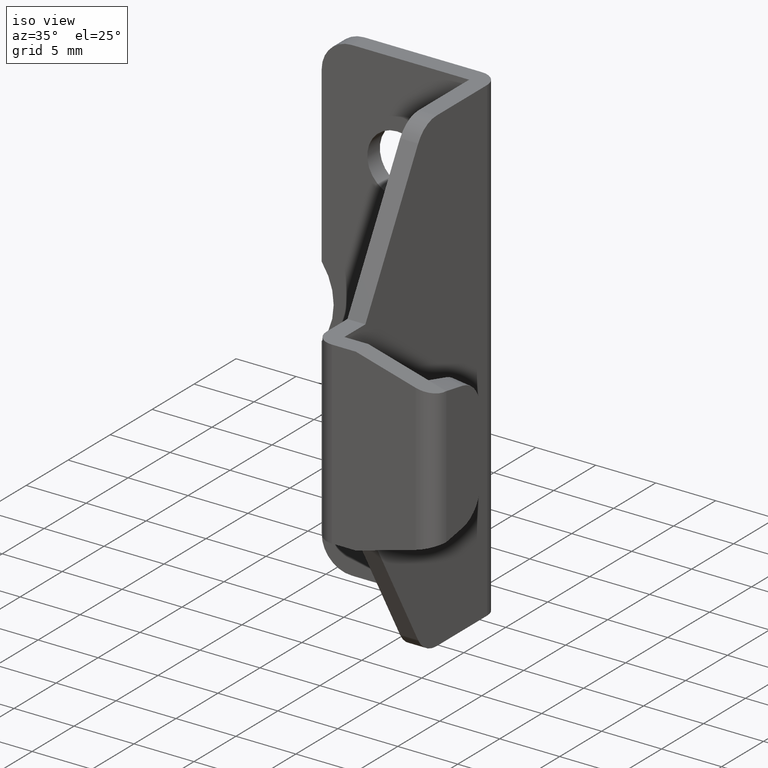
[diagram: clean part render]
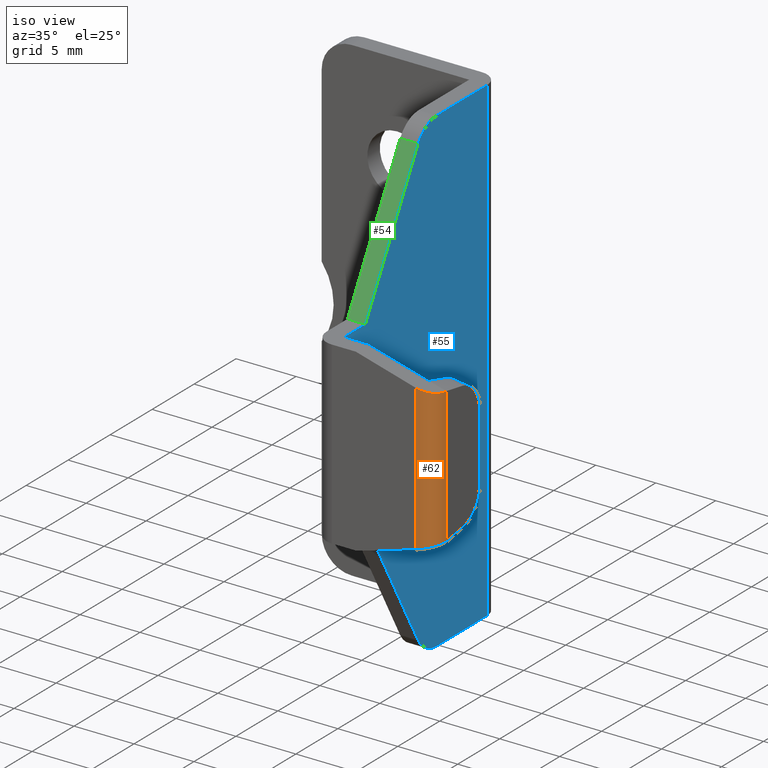
[diagram: same view with three faces highlighted in distinct colors, each labeled with its STEP entity id]
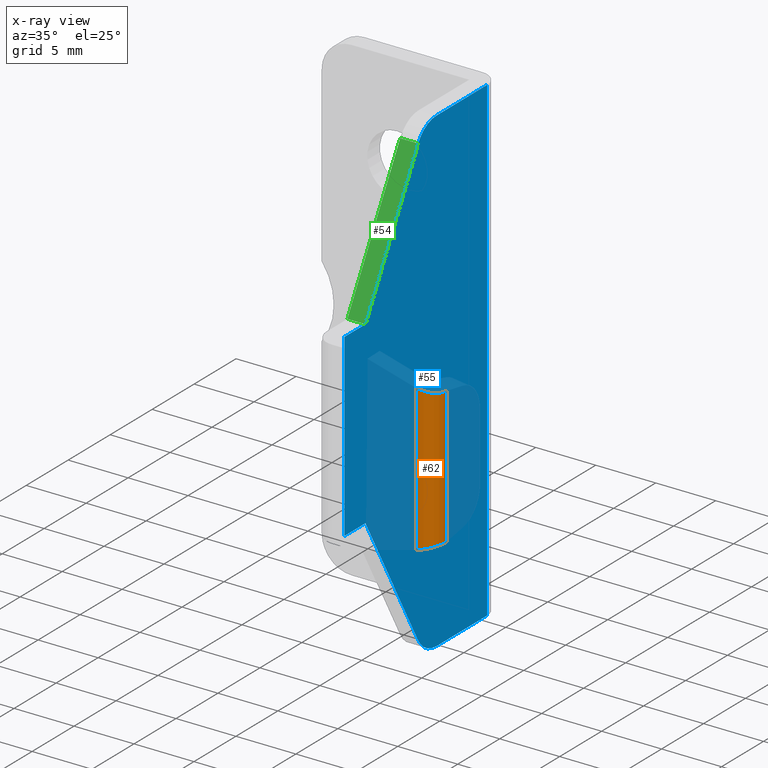
[diagram: x-ray of the same camera — body ghosted, the three highlighted faces saturated]
A machine part, iso view with three faces highlighted in distinct colors.
The next image is the same camera in x-ray (body ghosted, the three faces saturated) — at least one of them is partly hidden behind the body in this view.
Their STEP definitions:

[orange] entity #62 — the highlighted cylindrical surface (edge-blend (fillet) strip) has radius 1.5 mm, axis along (-0, -0, 1).
#62=ADVANCED_FACE('',(#300),#299,.T.);
#299=CYLINDRICAL_SURFACE('',#562,1.50000000000E+00);
#300=FACE_OUTER_BOUND('',#563,.T.);
#559=CARTESIAN_POINT('',(2.07999880000E+01,-1.75000000000E+01,5.69444783696E+00));
#560=DIRECTION('',(-0.00000000000E+00,-0.00000000000E+00,1.00000000000E+00));
#561=DIRECTION('',(1.00000000000E+00,-0.00000000000E+00,-0.00000000000E+00));
#562=AXIS2_PLACEMENT_3D('',#559,#560,#561);
#563=EDGE_LOOP('',(#744,#745,#746,#747));
#744=ORIENTED_EDGE('',*,*,#893,.F.);
#745=ORIENTED_EDGE('',*,*,#889,.T.);
#746=ORIENTED_EDGE('',*,*,#894,.F.);
#747=ORIENTED_EDGE('',*,*,#895,.F.);
#889=EDGE_CURVE('',#1364,#1409,#1416,.T.);
#893=EDGE_CURVE('',#1364,#952,#1442,.T.);
#894=EDGE_CURVE('',#1448,#1409,#1449,.T.);
#895=EDGE_CURVE('',#952,#1448,#1455,.T.);
#952=VERTEX_POINT('',#1598);
#1364=VERTEX_POINT('',#1849);
#1409=VERTEX_POINT('',#1873);
#1416=(BOUNDED_CURVE() B_SPLINE_CURVE(2,(#1877,#1878,#1879),.UNSPECIFIED.,.F.,.F.) B_SPLINE_CURVE_WITH_KNOTS((3,3),(-3.14159265359E+00,-1.57079632679E+00),.UNSPECIFIED.) CURVE() GEOMETRIC_REPRESENTATION_ITEM() RATIONAL_B_SPLINE_CURVE((1.00000000000E+00,7.07106781187E-01,1.00000000000E+00)) REPRESENTATION_ITEM('') );
#1442=LINE('',#1921,#1922);
#1448=VERTEX_POINT('',#1924);
#1449=LINE('',#1925,#1926);
#1455=(BOUNDED_CURVE() B_SPLINE_CURVE(2,(#1928,#1929,#1930),.UNSPECIFIED.,.F.,.F.) B_SPLINE_CURVE_WITH_KNOTS((3,3),(-3.14159265359E+00,-1.57079632679E+00),.UNSPECIFIED.) CURVE() GEOMETRIC_REPRESENTATION_ITEM() RATIONAL_B_SPLINE_CURVE((1.00000000000E+00,7.07106781187E-01,1.00000000000E+00)) REPRESENTATION_ITEM('') );
#1598=CARTESIAN_POINT('',(2.22999880000E+01,-1.75000000000E+01,-5.69443980321E+00));
#1849=CARTESIAN_POINT('',(2.22999880000E+01,-1.75000000000E+01,5.69443980321E+00));
#1873=CARTESIAN_POINT('',(2.07999880000E+01,-1.90000000000E+01,6.11110754093E+00));
#1877=CARTESIAN_POINT('',(2.22999880000E+01,-1.75000000000E+01,5.69443980321E+00));
#1878=CARTESIAN_POINT('',(2.22999880000E+01,-1.90000000000E+01,5.69443980321E+00));
#1879=CARTESIAN_POINT('',(2.07999880000E+01,-1.90000000000E+01,6.11110754093E+00));
#1921=CARTESIAN_POINT('',(2.22999880000E+01,-1.75000000000E+01,5.69443980321E+00));
#1922=VECTOR('',#1923,1.13888796064E+01);
#1923=DIRECTION('',(0.00000000000E+00,0.00000000000E+00,-1.00000000000E+00));
#1924=CARTESIAN_POINT('',(2.07999880000E+01,-1.90000000000E+01,-6.11110754093E+00));
#1925=CARTESIAN_POINT('',(2.07999880000E+01,-1.90000000000E+01,-6.11110754093E+00));
#1926=VECTOR('',#1927,1.22222150819E+01);
#1927=DIRECTION('',(0.00000000000E+00,0.00000000000E+00,1.00000000000E+00));
#1928=CARTESIAN_POINT('',(2.22999880000E+01,-1.75000000000E+01,-5.69443980321E+00));
#1929=CARTESIAN_POINT('',(2.22999880000E+01,-1.90000000000E+01,-5.69443980321E+00));
#1930=CARTESIAN_POINT('',(2.07999880000E+01,-1.90000000000E+01,-6.11110754093E+00));

[blue] entity #55 — the highlighted planar face has unit normal (1, 0, 0).
#55=ADVANCED_FACE('',(#228),#227,.T.);
#227=PLANE('',#517);
#228=FACE_OUTER_BOUND('',#518,.T.);
#514=CARTESIAN_POINT('',(1.37999880000E+01,-1.92000000000E+01,2.40000000000E+01));
#515=DIRECTION('',(1.00000000000E+00,0.00000000000E+00,0.00000000000E+00));
#516=DIRECTION('',(0.00000000000E+00,0.00000000000E+00,-1.00000000000E+00));
#517=AXIS2_PLACEMENT_3D('',#514,#515,#516);
#518=EDGE_LOOP('',(#698,#699,#700,#701,#702,#703,#704,#705,#706,#707));
#698=ORIENTED_EDGE('',*,*,#862,.F.);
#699=ORIENTED_EDGE('',*,*,#850,.T.);
#700=ORIENTED_EDGE('',*,*,#842,.F.);
#701=ORIENTED_EDGE('',*,*,#863,.T.);
#702=ORIENTED_EDGE('',*,*,#866,.F.);
#703=ORIENTED_EDGE('',*,*,#869,.F.);
#704=ORIENTED_EDGE('',*,*,#870,.T.);
#705=ORIENTED_EDGE('',*,*,#871,.F.);
#706=ORIENTED_EDGE('',*,*,#853,.F.);
#707=ORIENTED_EDGE('',*,*,#857,.T.);
#842=EDGE_CURVE('',#1102,#1103,#1104,.T.);
#850=EDGE_CURVE('',#1155,#1103,#1156,.T.);
#853=EDGE_CURVE('',#1175,#1176,#1177,.T.);
#857=EDGE_CURVE('',#1175,#1203,#1204,.T.);
#862=EDGE_CURVE('',#1155,#1203,#1235,.T.);
#863=EDGE_CURVE('',#1102,#1241,#1242,.T.);
#866=EDGE_CURVE('',#1261,#1241,#1262,.T.);
#869=EDGE_CURVE('',#1281,#1261,#1282,.T.);
#870=EDGE_CURVE('',#1281,#1288,#1289,.T.);
#871=EDGE_CURVE('',#1176,#1288,#1295,.T.);
#1102=VERTEX_POINT('',#1690);
#1103=VERTEX_POINT('',#1691);
#1104=LINE('',#1692,#1693);
#1155=VERTEX_POINT('',#1722);
#1156=LINE('',#1723,#1724);
#1175=VERTEX_POINT('',#1734);
#1176=VERTEX_POINT('',#1735);
#1177=LINE('',#1736,#1737);
#1203=VERTEX_POINT('',#1750);
#1204=CIRCLE('',#1754,2.50000000000E+00);
#1235=LINE('',#1769,#1770);
#1241=VERTEX_POINT('',#1772);
#1242=CIRCLE('',#1776,2.50000000000E+00);
#1261=VERTEX_POINT('',#1785);
#1262=LINE('',#1786,#1787);
#1281=VERTEX_POINT('',#1796);
#1282=LINE('',#1797,#1798);
#1288=VERTEX_POINT('',#1800);
#1289=LINE('',#1801,#1802);
#1295=LINE('',#1804,#1805);
#1690=CARTESIAN_POINT('',(1.37999880000E+01,-6.53473041134E+00,2.00000000000E+01));
#1691=CARTESIAN_POINT('',(1.37999880000E+01,-5.00000000000E-01,2.00000000000E+01));
#1692=CARTESIAN_POINT('',(1.37999880000E+01,-6.53473041134E+00,2.00000000000E+01));
#1693=VECTOR('',#1694,6.03473041134E+00);
#1694=DIRECTION('',(0.00000000000E+00,1.00000000000E+00,0.00000000000E+00));
#1722=CARTESIAN_POINT('',(1.37999880000E+01,-5.00000000000E-01,-2.00000000000E+01));
#1723=CARTESIAN_POINT('',(1.37999880000E+01,-5.00000000000E-01,-2.00000000000E+01));
#1724=VECTOR('',#1725,4.00000000000E+01);
#1725=DIRECTION('',(0.00000000000E+00,0.00000000000E+00,1.00000000000E+00));
#1734=CARTESIAN_POINT('',(1.37999880000E+01,-8.71593436612E+00,-1.87215089085E+01));
#1735=CARTESIAN_POINT('',(1.37999880000E+01,-1.49999826400E+01,-7.50000000000E+00));
#1736=CARTESIAN_POINT('',(1.37999880000E+01,-8.71593436612E+00,-1.87215089085E+01));
#1737=VECTOR('',#1738,1.28612411878E+01);
#1738=DIRECTION('',(0.00000000000E+00,-4.88603563382E-01,8.72505907058E-01));
#1750=CARTESIAN_POINT('',(1.37999880000E+01,-6.53466959847E+00,-2.00000000000E+01));
#1751=CARTESIAN_POINT('',(1.37999880000E+01,-6.53466959847E+00,-1.75000000000E+01));
#1752=DIRECTION('',(1.00000000000E+00,0.00000000000E+00,0.00000000000E+00));
#1753=DIRECTION('',(-0.00000000000E+00,-0.00000000000E+00,1.00000000000E+00));
#1754=AXIS2_PLACEMENT_3D('',#1751,#1752,#1753);
#1769=CARTESIAN_POINT('',(1.37999880000E+01,-5.00000000000E-01,-2.00000000000E+01));
#1770=VECTOR('',#1771,6.03466959847E+00);
#1771=DIRECTION('',(0.00000000000E+00,-1.00000000000E+00,0.00000000000E+00));
#1772=CARTESIAN_POINT('',(1.37999880000E+01,-8.71599585956E+00,1.87215076931E+01));
#1773=CARTESIAN_POINT('',(1.37999880000E+01,-6.53473041134E+00,1.75000000000E+01));
#1774=DIRECTION('',(1.00000000000E+00,0.00000000000E+00,0.00000000000E+00));
#1775=DIRECTION('',(-0.00000000000E+00,-0.00000000000E+00,1.00000000000E+00));
#1776=AXIS2_PLACEMENT_3D('',#1773,#1774,#1775);
#1785=CARTESIAN_POINT('',(1.37999880000E+01,-1.50000352400E+01,7.50000000000E+00));
#1786=CARTESIAN_POINT('',(1.37999880000E+01,-1.50000352400E+01,7.50000000000E+00));
#1787=VECTOR('',#1788,1.28612357821E+01);
#1788=DIRECTION('',(0.00000000000E+00,4.88603077257E-01,8.72506179287E-01));
#1796=CARTESIAN_POINT('',(1.37999880000E+01,-1.75000000000E+01,7.50000000000E+00));
#1797=CARTESIAN_POINT('',(1.37999880000E+01,-1.75000000000E+01,7.50000000000E+00));
#1798=VECTOR('',#1799,2.49996475998E+00);
#1799=DIRECTION('',(0.00000000000E+00,1.00000000000E+00,0.00000000000E+00));
#1800=CARTESIAN_POINT('',(1.37999880000E+01,-1.75000000000E+01,-7.50000000000E+00));
#1801=CARTESIAN_POINT('',(1.37999880000E+01,-1.75000000000E+01,7.50000000000E+00));
#1802=VECTOR('',#1803,1.50000000000E+01);
#1803=DIRECTION('',(0.00000000000E+00,0.00000000000E+00,-1.00000000000E+00));
#1804=CARTESIAN_POINT('',(1.37999880000E+01,-1.49999826400E+01,-7.50000000000E+00));
#1805=VECTOR('',#1806,2.50001736001E+00);
#1806=DIRECTION('',(0.00000000000E+00,-1.00000000000E+00,0.00000000000E+00));

[green] entity #54 — the highlighted planar face has unit normal (0, 0.8725, -0.4886).
#54=ADVANCED_FACE('',(#218),#217,.F.);
#217=PLANE('',#512);
#218=FACE_OUTER_BOUND('',#513,.T.);
#509=CARTESIAN_POINT('',(1.21499880000E+01,-1.56284391781E+01,6.37784923069E+00));
#510=DIRECTION('',(0.00000000000E+00,8.72506179287E-01,-4.88603077257E-01));
#511=DIRECTION('',(0.00000000000E+00,4.88603077257E-01,8.72506179287E-01));
#512=AXIS2_PLACEMENT_3D('',#509,#510,#511);
#513=EDGE_LOOP('',(#694,#695,#696,#697));
#694=ORIENTED_EDGE('',*,*,#866,.T.);
#695=ORIENTED_EDGE('',*,*,#865,.F.);
#696=ORIENTED_EDGE('',*,*,#867,.F.);
#697=ORIENTED_EDGE('',*,*,#868,.T.);
#865=EDGE_CURVE('',#1248,#1241,#1255,.T.);
#866=EDGE_CURVE('',#1261,#1241,#1262,.T.);
#867=EDGE_CURVE('',#1268,#1248,#1269,.T.);
#868=EDGE_CURVE('',#1268,#1261,#1275,.T.);
#1241=VERTEX_POINT('',#1772);
#1248=VERTEX_POINT('',#1777);
#1255=LINE('',#1782,#1783);
#1261=VERTEX_POINT('',#1785);
#1262=LINE('',#1786,#1787);
#1268=VERTEX_POINT('',#1789);
#1269=LINE('',#1790,#1791);
#1275=LINE('',#1793,#1794);
#1772=CARTESIAN_POINT('',(1.37999880000E+01,-8.71599585956E+00,1.87215076931E+01));
#1777=CARTESIAN_POINT('',(1.22999880000E+01,-8.71599585956E+00,1.87215076931E+01));
#1782=CARTESIAN_POINT('',(1.22999880000E+01,-8.71599585956E+00,1.87215076931E+01));
#1783=VECTOR('',#1784,1.50000000000E+00);
#1784=DIRECTION('',(1.00000000000E+00,0.00000000000E+00,0.00000000000E+00));
#1785=CARTESIAN_POINT('',(1.37999880000E+01,-1.50000352400E+01,7.50000000000E+00));
#1786=CARTESIAN_POINT('',(1.37999880000E+01,-1.50000352400E+01,7.50000000000E+00));
#1787=VECTOR('',#1788,1.28612357821E+01);
#1788=DIRECTION('',(0.00000000000E+00,4.88603077257E-01,8.72506179287E-01));
#1789=CARTESIAN_POINT('',(1.22999880000E+01,-1.50000352400E+01,7.50000000000E+00));
#1790=CARTESIAN_POINT('',(1.22999880000E+01,-1.50000352400E+01,7.50000000000E+00));
#1791=VECTOR('',#1792,1.28612357821E+01);
#1792=DIRECTION('',(0.00000000000E+00,4.88603077257E-01,8.72506179287E-01));
#1793=CARTESIAN_POINT('',(1.22999880000E+01,-1.50000352400E+01,7.50000000000E+00));
#1794=VECTOR('',#1795,1.50000000000E+00);
#1795=DIRECTION('',(1.00000000000E+00,0.00000000000E+00,0.00000000000E+00));